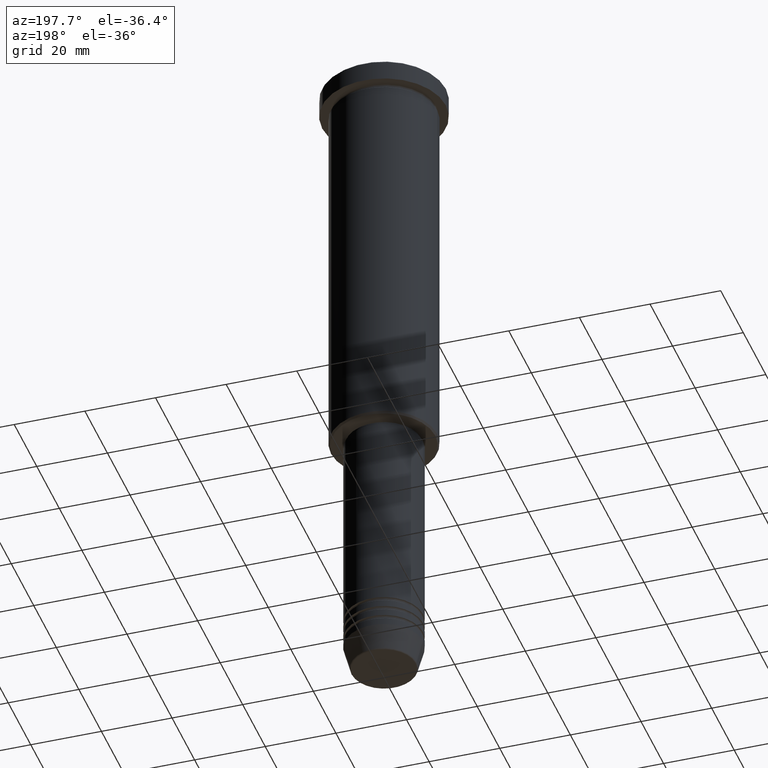
[diagram: clean part render]
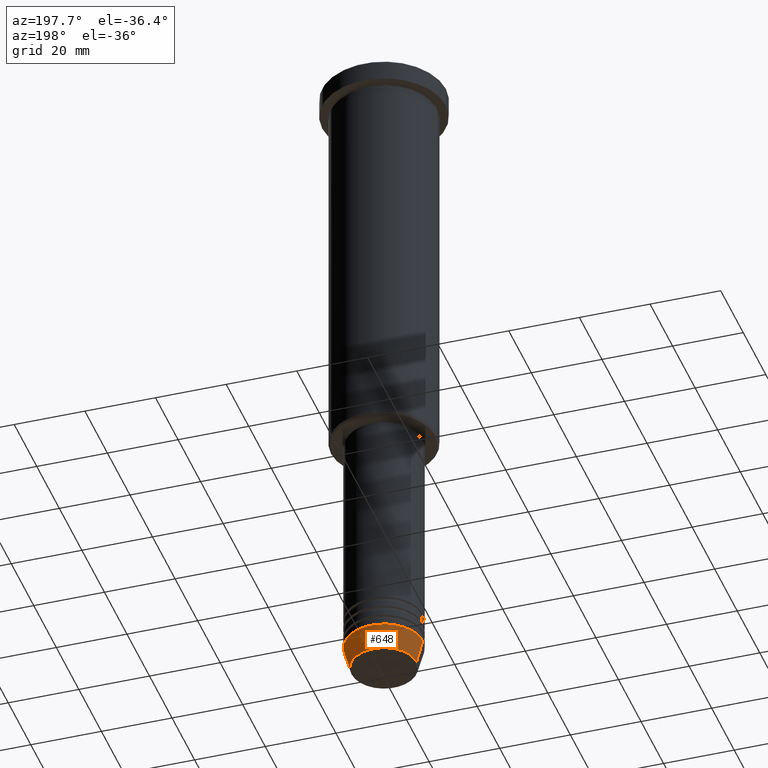
[diagram: same view with one face highlighted and labeled with its STEP entity id]
A machine part, auxiliary view. The second image highlights one B-rep face of the part: STEP entity #648.
In plain terms, the highlighted conical surface has half-angle 15 deg.
Its self-contained STEP definition (entity closure, byte-faithful):
#56 = EDGE_CURVE ( 'NONE', #1126, #818, #318, .T. ) ;
#70 = DIRECTION ( 'NONE',  ( -0.000000000000000000, -0.000000000000000000, 1.000000000000000000 ) ) ;
#86 = EDGE_CURVE ( 'NONE', #459, #1126, #870, .T. ) ;
#149 = CARTESIAN_POINT ( 'NONE',  ( 11.00000000000000000, 0.000000000000000000, -184.0000000000000284 ) ) ;
#184 = CARTESIAN_POINT ( 'NONE',  ( -9.223655072137194821, 1.238341722557647596E-15, -190.6294095225512422 ) ) ;
#206 = EDGE_CURVE ( 'NONE', #459, #746, #579, .T. ) ;
#215 = CARTESIAN_POINT ( 'NONE',  ( -11.00000000000000000, 1.347111479062088405E-15, -184.0000000000000284 ) ) ;
#234 = EDGE_CURVE ( 'NONE', #746, #818, #580, .T. ) ;
#254 = FACE_OUTER_BOUND ( 'NONE', #984, .T. ) ;
#318 = CIRCLE ( 'NONE', #902, 11.00000000000000000 ) ;
#337 = VECTOR ( 'NONE', #563, 1000.000000000000000 ) ;
#406 = DIRECTION ( 'NONE',  ( 1.000000000000000000, 0.000000000000000000, 0.000000000000000000 ) ) ;
#434 = DIRECTION ( 'NONE',  ( 1.000000000000000000, 0.000000000000000000, 0.000000000000000000 ) ) ;
#459 = VERTEX_POINT ( 'NONE', #1035 ) ;
#530 = ORIENTED_EDGE ( 'NONE', *, *, #234, .T. ) ;
#563 = DIRECTION ( 'NONE',  ( -0.2588190451025213501, 3.169619151431772337E-17, 0.9659258262890680902 ) ) ;
#566 = CARTESIAN_POINT ( 'NONE',  ( 0.000000000000000000, 0.000000000000000000, -190.6294095225512422 ) ) ;
#572 = CARTESIAN_POINT ( 'NONE',  ( 11.00000000000000000, 0.000000000000000000, -184.0000000000000284 ) ) ;
#579 = CIRCLE ( 'NONE', #813, 9.223655072137194821 ) ;
#580 = LINE ( 'NONE', #215, #337 ) ;
#590 = ORIENTED_EDGE ( 'NONE', *, *, #56, .F. ) ;
#631 = CARTESIAN_POINT ( 'NONE',  ( 0.000000000000000000, 0.000000000000000000, -184.0000000000000284 ) ) ;
#648 = ADVANCED_FACE ( 'NONE', ( #254 ), #1052, .T. ) ;
#671 = DIRECTION ( 'NONE',  ( 1.000000000000000000, 0.000000000000000000, 0.000000000000000000 ) ) ;
#688 = CARTESIAN_POINT ( 'NONE',  ( 0.000000000000000000, 0.000000000000000000, -184.0000000000000284 ) ) ;
#733 = ORIENTED_EDGE ( 'NONE', *, *, #206, .T. ) ;
#746 = VERTEX_POINT ( 'NONE', #184 ) ;
#763 = CARTESIAN_POINT ( 'NONE',  ( -11.00000000000000000, 1.347111479062088405E-15, -184.0000000000000284 ) ) ;
#786 = DIRECTION ( 'NONE',  ( 0.2588190451025213501, 0.000000000000000000, 0.9659258262890680902 ) ) ;
#790 = AXIS2_PLACEMENT_3D ( 'NONE', #631, #1163, #434 ) ;
#813 = AXIS2_PLACEMENT_3D ( 'NONE', #566, #1111, #671 ) ;
#818 = VERTEX_POINT ( 'NONE', #763 ) ;
#870 = LINE ( 'NONE', #149, #957 ) ;
#902 = AXIS2_PLACEMENT_3D ( 'NONE', #688, #70, #406 ) ;
#957 = VECTOR ( 'NONE', #786, 1000.000000000000000 ) ;
#984 = EDGE_LOOP ( 'NONE', ( #733, #530, #590, #1025 ) ) ;
#1025 = ORIENTED_EDGE ( 'NONE', *, *, #86, .F. ) ;
#1035 = CARTESIAN_POINT ( 'NONE',  ( 9.223655072137194821, 0.000000000000000000, -190.6294095225512422 ) ) ;
#1052 = CONICAL_SURFACE ( 'NONE', #790, 11.00000000000000000, 0.2617993877991500740 ) ;
#1111 = DIRECTION ( 'NONE',  ( -0.000000000000000000, -0.000000000000000000, 1.000000000000000000 ) ) ;
#1126 = VERTEX_POINT ( 'NONE', #572 ) ;
#1163 = DIRECTION ( 'NONE',  ( -0.000000000000000000, -0.000000000000000000, 1.000000000000000000 ) ) ;